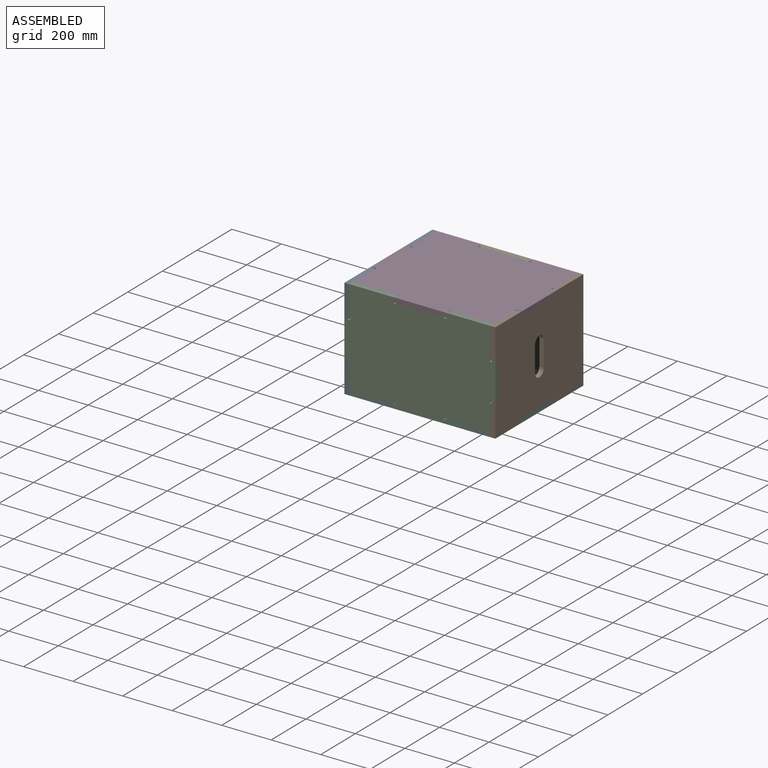
[diagram: assembled view]
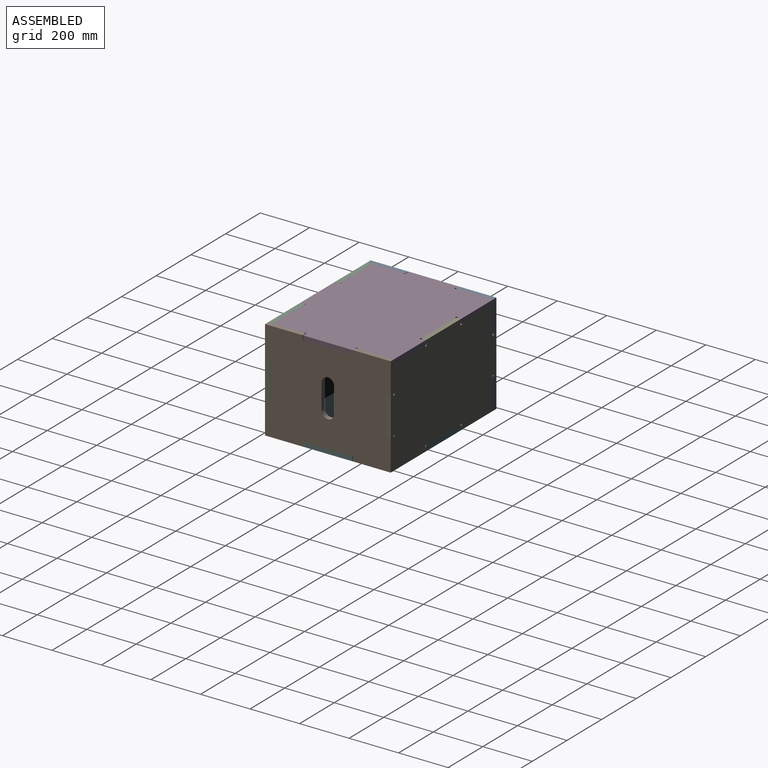
[diagram: assembled view, second angle]
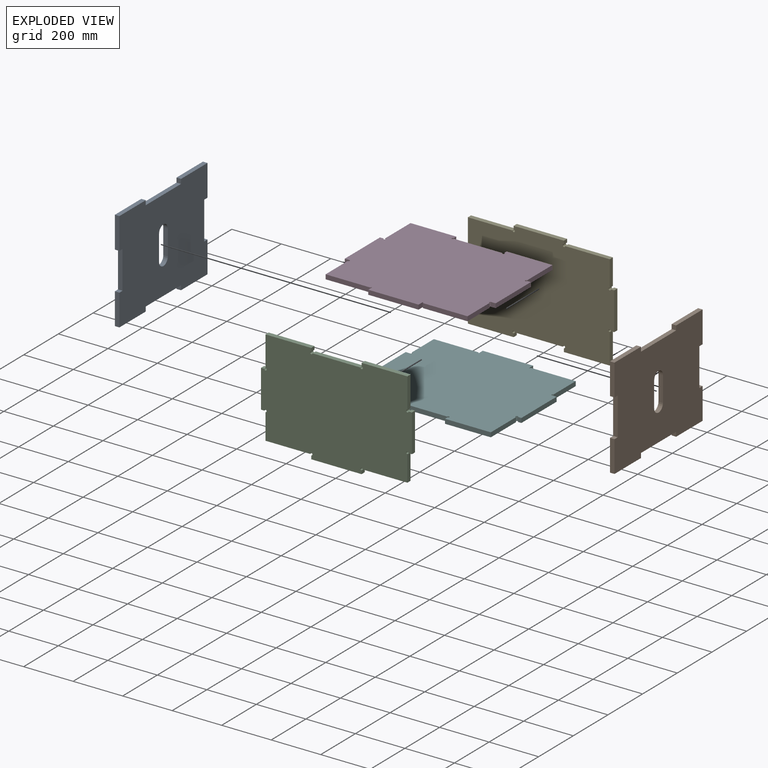
[diagram: exploded view]
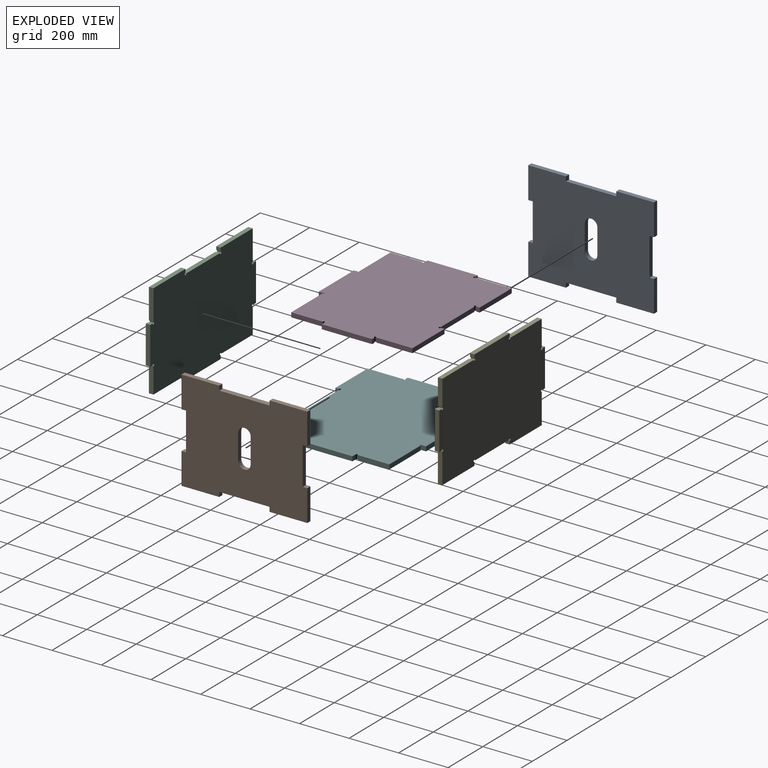
[diagram: exploded view, second angle]
ASSEMBLY  parts=6 mates=5
PART A: 26 faces, bbox 508x18.3x406.4 mm
  f0: plane 18.26x18.26mm, normal (1,0,0), area 333.5mm2, adj f1,f23,f24,f25
  f1: plane 152.4x18.26mm, normal (0,0,1), area 2783.2mm2, adj f0,f2,f24,f25
  f2: plane 127x18.26mm, normal (-1,0,0), area 2319.4mm2, adj f1,f3,f24,f25
  f3: plane 18.26x18.26mm, normal (0,0,-1), area 333.5mm2, adj f2,f4,f24,f25
  f4: plane 152.4x18.26mm, normal (-1,0,0), area 2783.2mm2, adj f3,f5,f24,f25
  f5: plane 18.26x18.26mm, normal (0,0,1), area 333.5mm2, adj f4,f6,f24,f25
  f6: plane 127x18.26mm, normal (-1,0,0), area 2319.4mm2, adj f5,f7,f24,f25
  f7: plane 152.4x18.26mm, normal (0,0,-1), area 2783.2mm2, adj f6,f8,f24,f25
  f8: plane 18.26x18.26mm, normal (1,0,0), area 333.5mm2, adj f7,f9,f24,f25
  f9: plane 203.2x18.26mm, normal (0,0,-1), area 3711mm2, adj f8,f10,f24,f25
  f10: plane 18.26x18.26mm, normal (-1,0,0), area 333.5mm2, adj f9,f11,f24,f25
  f11: plane 152.4x18.26mm, normal (0,0,-1), area 2783.2mm2, adj f10,f12,f24,f25
  f12: plane 127x18.26mm, normal (1,0,0), area 2319.4mm2, adj f11,f13,f24,f25
  f13: plane 18.26x18.26mm, normal (0,0,1), area 333.5mm2, adj f12,f14,f24,f25
  f14: plane 152.4x18.26mm, normal (1,0,0), area 2783.2mm2, adj f13,f15,f24,f25
  f15: plane 18.26x18.26mm, normal (0,0,-1), area 333.5mm2, adj f14,f16,f24,f25
  f16: plane 127x18.26mm, normal (1,0,0), area 2319.4mm2, adj f15,f17,f24,f25
  f17: plane 152.4x18.26mm, normal (0,0,1), area 2783.2mm2, adj f16,f18,f24,f25
  f18: plane 18.26x18.26mm, normal (-1,0,0), area 333.5mm2, adj f17,f23,f24,f25
  f19: cylinder r=25.4mm len=50.8mm, axis (0,1,0), area 1457.3mm2, adj f20,f22,f24,f25
  f20: plane 101.6x18.26mm, normal (-1,0,0), area 1855.5mm2, adj f19,f21,f24,f25
  f21: cylinder r=25.4mm len=50.8mm, axis (0,1,0), area 1457.3mm2, adj f20,f22,f24,f25
  f22: plane 101.6x18.26mm, normal (1,0,0), area 1855.5mm2, adj f19,f21,f24,f25
  f23: plane 203.2x18.26mm, normal (0,0,1), area 3711mm2, adj f0,f18,f24,f25
  f24: plane 508x406.4mm, normal (0,-1,0), area 186274.7mm2, adj f0,f1,f2,f3,f4,f5,f6,f7
  f25: plane 508x406.4mm, normal (0,1,0), area 186274.7mm2, adj f0,f1,f2,f3,f4,f5,f6,f7
PART B: same geometry as A
PART C: 30 faces, bbox 609.6x18.3x406.4 mm
  f0: plane 180.18x18.26mm, normal (0,0,-1), area 3289.3mm2, adj f1,f27,f28,f29
  f1: cylinder r=4.76mm len=18.26mm, axis (0,1,0), area 409.7mm2, adj f0,f2,f28,f29
  f2: plane 18.26x13.49mm, normal (-1,0,0), area 246.3mm2, adj f1,f3,f28,f29
  f3: plane 203.2x18.26mm, normal (0,0,-1), area 3709.7mm2, adj f2,f4,f28,f29
  f4: plane 18.26x13.49mm, normal (1,0,0), area 246.3mm2, adj f3,f5,f28,f29
  f5: cylinder r=4.76mm len=18.26mm, axis (0,1,0), area 409.7mm2, adj f4,f6,f28,f29
  f6: plane 180.18x18.26mm, normal (0,0,-1), area 3289.3mm2, adj f5,f7,f28,f29
  f7: plane 103.98x18.26mm, normal (1,0,0), area 1898.3mm2, adj f6,f8,f28,f29
  f8: cylinder r=4.76mm len=18.26mm, axis (0,1,0), area 409.7mm2, adj f7,f9,f28,f29
  f9: plane 18.26x13.5mm, normal (0,0,-1), area 246.5mm2, adj f8,f10,f28,f29
  f10: plane 152.4x18.26mm, normal (1,0,0), area 2782.3mm2, adj f9,f11,f28,f29
  f11: plane 18.26x13.5mm, normal (0,0,1), area 246.5mm2, adj f10,f12,f28,f29
  f12: cylinder r=4.76mm len=18.26mm, axis (0,1,0), area 409.7mm2, adj f11,f13,f28,f29
  f13: plane 122.24x18.26mm, normal (1,0,0), area 2231.6mm2, adj f12,f14,f28,f29
  f14: plane 184.94x18.26mm, normal (0,0,1), area 3376.3mm2, adj f13,f15,f28,f29
  f15: plane 18.26x13.49mm, normal (-1,0,0), area 246.3mm2, adj f14,f16,f28,f29
  f16: cylinder r=4.76mm len=18.26mm, axis (0,1,0), area 409.7mm2, adj f15,f17,f28,f29
  f17: plane 193.68x18.26mm, normal (0,0,1), area 3535.8mm2, adj f16,f18,f28,f29
  f18: cylinder r=4.76mm len=18.26mm, axis (0,1,0), area 409.7mm2, adj f17,f19,f28,f29
  f19: plane 18.26x13.49mm, normal (1,0,0), area 246.3mm2, adj f18,f20,f28,f29
  f20: plane 184.94x18.26mm, normal (0,0,1), area 3376.3mm2, adj f19,f21,f28,f29
  f21: plane 122.24x18.26mm, normal (-1,0,0), area 2231.6mm2, adj f20,f22,f28,f29
  f22: cylinder r=4.76mm len=18.26mm, axis (0,1,0), area 409.7mm2, adj f21,f23,f28,f29
  f23: plane 18.26x13.5mm, normal (0,0,1), area 246.5mm2, adj f22,f24,f28,f29
  f24: plane 152.4x18.26mm, normal (-1,0,0), area 2782.3mm2, adj f23,f25,f28,f29
  f25: plane 18.26x13.5mm, normal (0,0,-1), area 246.5mm2, adj f24,f26,f28,f29
  f26: cylinder r=4.76mm len=18.26mm, axis (0,1,0), area 409.7mm2, adj f25,f27,f28,f29
  f27: plane 103.98x18.26mm, normal (-1,0,0), area 1898.3mm2, adj f0,f26,f28,f29
  f28: plane 609.6x406.4mm, normal (0,-1,0), area 227574.3mm2, adj f0,f1,f2,f3,f4,f5,f6,f7
  f29: plane 609.6x406.4mm, normal (0,1,0), area 227574.3mm2, adj f0,f1,f2,f3,f4,f5,f6,f7
PART D: 30 faces, bbox 609.6x18.3x508 mm
  f0: plane 180.18x18.26mm, normal (0,0,-1), area 3289.3mm2, adj f1,f27,f28,f29
  f1: plane 127.05x18.26mm, normal (1,0,0), area 2319.5mm2, adj f0,f2,f28,f29
  f2: cylinder r=4.76mm len=18.26mm, axis (0,1,0), area 253.4mm2, adj f1,f3,f28,f29
  f3: plane 19.33x18.26mm, normal (0,0,-1), area 353mm2, adj f2,f4,f28,f29
  f4: plane 203.2x18.26mm, normal (1,0,0), area 3709.7mm2, adj f3,f5,f28,f29
  f5: plane 18.26x13.5mm, normal (0,0,1), area 246.5mm2, adj f4,f6,f28,f29
  f6: cylinder r=4.76mm len=18.26mm, axis (0,1,0), area 409.7mm2, adj f5,f7,f28,f29
  f7: plane 145.32x18.26mm, normal (1,0,0), area 2652.9mm2, adj f6,f8,f28,f29
  f8: plane 184.94x18.26mm, normal (0,0,1), area 3376.3mm2, adj f7,f9,f28,f29
  f9: plane 18.26x13.49mm, normal (-1,0,0), area 246.3mm2, adj f8,f10,f28,f29
  f10: cylinder r=4.76mm len=18.26mm, axis (0,1,0), area 409.7mm2, adj f9,f11,f28,f29
  f11: plane 193.68x18.26mm, normal (0,0,1), area 3535.8mm2, adj f10,f12,f28,f29
  f12: cylinder r=4.76mm len=18.26mm, axis (0,1,0), area 409.7mm2, adj f11,f13,f28,f29
  f13: plane 18.26x13.49mm, normal (1,0,0), area 246.3mm2, adj f12,f14,f28,f29
  f14: plane 184.94x18.26mm, normal (0,0,1), area 3376.3mm2, adj f13,f15,f28,f29
  f15: plane 145.32x18.26mm, normal (-1,0,0), area 2652.9mm2, adj f14,f16,f28,f29
  f16: cylinder r=4.76mm len=18.26mm, axis (0,1,0), area 409.7mm2, adj f15,f17,f28,f29
  f17: plane 18.26x13.5mm, normal (0,0,1), area 246.5mm2, adj f16,f18,f28,f29
  f18: plane 203.2x18.26mm, normal (-1,0,0), area 3709.7mm2, adj f17,f19,f28,f29
  f19: plane 19.33x18.26mm, normal (0,0,-1), area 353mm2, adj f18,f20,f28,f29
  f20: cylinder r=4.76mm len=18.26mm, axis (0,1,0), area 253.4mm2, adj f19,f21,f28,f29
  f21: plane 127.05x18.26mm, normal (-1,0,0), area 2319.5mm2, adj f20,f22,f28,f29
  f22: plane 180.18x18.26mm, normal (0,0,-1), area 3289.3mm2, adj f21,f23,f28,f29
  f23: cylinder r=4.76mm len=18.26mm, axis (0,1,0), area 136.5mm2, adj f22,f24,f28,f29
  f24: plane 23.02x18.26mm, normal (-1,0,0), area 420.2mm2, adj f23,f25,f28,f29
  f25: plane 203.2x18.26mm, normal (0,0,-1), area 3709.7mm2, adj f24,f26,f28,f29
  f26: plane 23.02x18.26mm, normal (1,0,0), area 420.2mm2, adj f25,f27,f28,f29
  f27: cylinder r=4.76mm len=18.26mm, axis (0,1,0), area 136.5mm2, adj f0,f26,f28,f29
  f28: plane 609.6x508mm, normal (0,-1,0), area 287759mm2, adj f0,f1,f2,f3,f4,f5,f6,f7
  f29: plane 609.6x508mm, normal (0,1,0), area 287759mm2, adj f0,f1,f2,f3,f4,f5,f6,f7
PART E: same geometry as C
PART F: same geometry as D
PLACE A rot(axis=(0,0,1),90deg) t=(-400.8,-454.12,631.4)mm
PLACE B rot(axis=(0,0,-1),90deg) t=(208.8,894.47,631.4)mm
PLACE C t=(-74.94,-15.57,631.4)mm fixed
PLACE D rot(axis=(-1,0,0),90deg) t=(-74.94,134.24,300.28)mm
PLACE E rot(axis=(1,0,0),180deg) t=(-74.94,455.92,-400.73)mm
PLACE F rot(axis=(1,0,0),90deg) t=(-74.94,306.11,-69.61)mm
MATE fastened A.f24 <-> D.f15  axis (1,0,0) through (-382.54,474.18,318.53)mm
MATE fastened C.f29 <-> F.f11  axis (0,1,0) through (-96,-15.57,-87.87)mm
MATE fastened B.f24 <-> E.f13  axis (-1,0,0) through (190.54,474.18,-87.87)mm
MATE fastened E.f17 <-> F.f29  axis (0,0,-1) through (-96,474.18,-69.61)mm
MATE fastened C.f17 <-> D.f29  axis (0,0,1) through (-96,-33.82,300.28)mm
